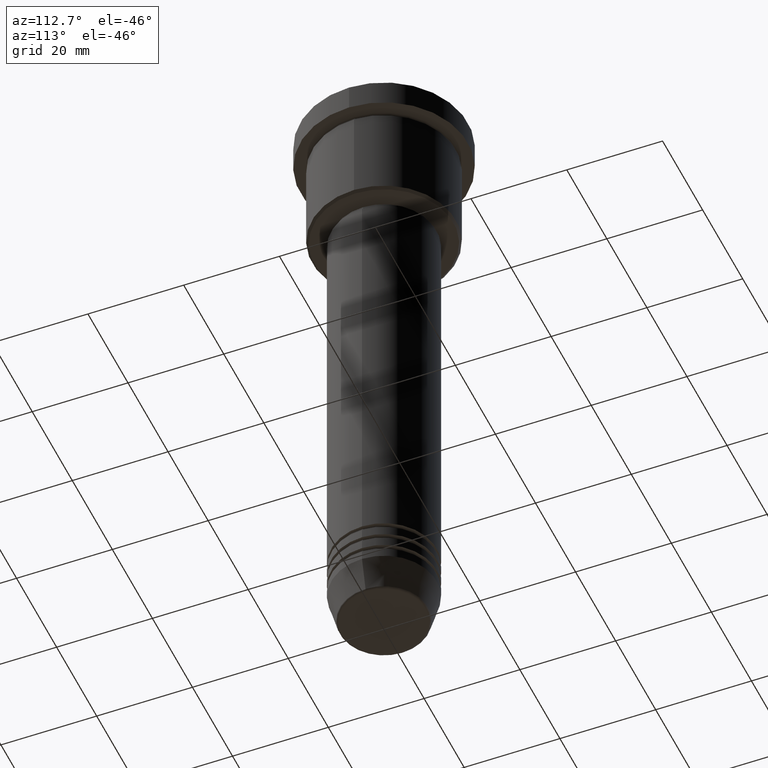
[diagram: clean part render]
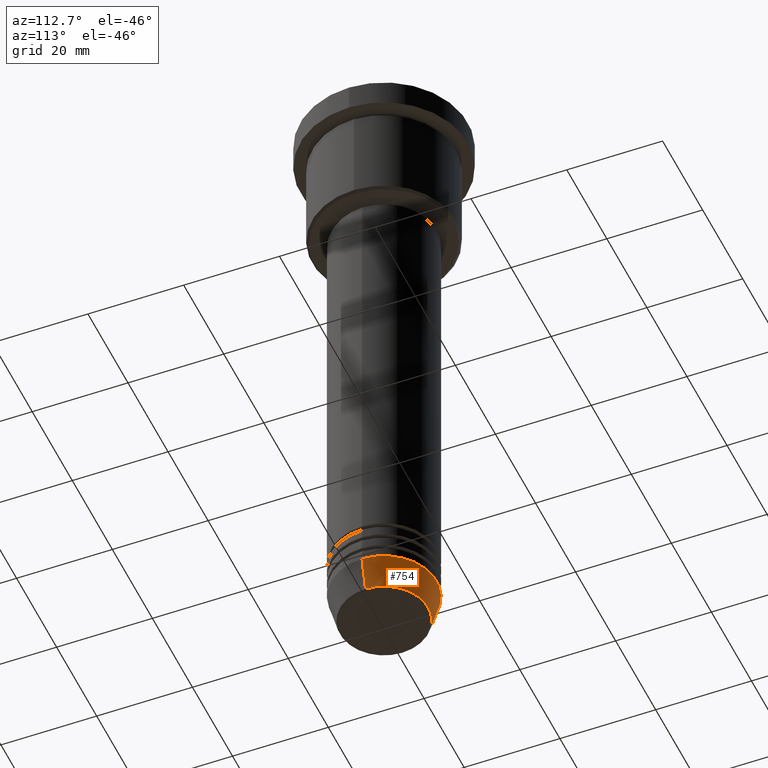
[diagram: same view with one face highlighted and labeled with its STEP entity id]
A machine part, auxiliary view. The second image highlights one B-rep face of the part: STEP entity #754.
In plain terms, the highlighted conical surface has half-angle 15 deg.
Its self-contained STEP definition (entity closure, byte-faithful):
#17 = LINE ( 'NONE', #686, #401 ) ;
#22 = AXIS2_PLACEMENT_3D ( 'NONE', #36, #681, #570 ) ;
#36 = CARTESIAN_POINT ( 'NONE',  ( 0.000000000000000000, 0.000000000000000000, -131.6294095225512422 ) ) ;
#118 = AXIS2_PLACEMENT_3D ( 'NONE', #819, #898, #265 ) ;
#125 = CARTESIAN_POINT ( 'NONE',  ( -11.00000000000000000, 1.347111479062088405E-15, -125.0000000000000000 ) ) ;
#179 = VERTEX_POINT ( 'NONE', #466 ) ;
#202 = ORIENTED_EDGE ( 'NONE', *, *, #415, .T. ) ;
#265 = DIRECTION ( 'NONE',  ( 1.000000000000000000, 0.000000000000000000, 0.000000000000000000 ) ) ;
#303 = CONICAL_SURFACE ( 'NONE', #863, 11.00000000000000000, 0.2617993877991500740 ) ;
#313 = ORIENTED_EDGE ( 'NONE', *, *, #914, .T. ) ;
#373 = CARTESIAN_POINT ( 'NONE',  ( 0.000000000000000000, 0.000000000000000000, -125.0000000000000000 ) ) ;
#399 = CARTESIAN_POINT ( 'NONE',  ( 9.223655072137187716, 0.000000000000000000, -131.6294095225512422 ) ) ;
#401 = VECTOR ( 'NONE', #974, 1000.000000000000000 ) ;
#415 = EDGE_CURVE ( 'NONE', #902, #179, #1048, .T. ) ;
#417 = ORIENTED_EDGE ( 'NONE', *, *, #931, .F. ) ;
#436 = EDGE_LOOP ( 'NONE', ( #202, #313, #679, #417 ) ) ;
#466 = CARTESIAN_POINT ( 'NONE',  ( -9.223655072137187716, 1.238341722557647004E-15, -131.6294095225512422 ) ) ;
#470 = CARTESIAN_POINT ( 'NONE',  ( 11.00000000000000000, 0.000000000000000000, -125.0000000000000000 ) ) ;
#476 = LINE ( 'NONE', #125, #638 ) ;
#487 = DIRECTION ( 'NONE',  ( -0.2588190451025213501, 3.169619151431772337E-17, 0.9659258262890680902 ) ) ;
#555 = FACE_OUTER_BOUND ( 'NONE', #436, .T. ) ;
#570 = DIRECTION ( 'NONE',  ( 1.000000000000000000, 0.000000000000000000, 0.000000000000000000 ) ) ;
#624 = DIRECTION ( 'NONE',  ( 1.000000000000000000, 0.000000000000000000, 0.000000000000000000 ) ) ;
#628 = EDGE_CURVE ( 'NONE', #892, #918, #1052, .T. ) ;
#638 = VECTOR ( 'NONE', #487, 1000.000000000000000 ) ;
#679 = ORIENTED_EDGE ( 'NONE', *, *, #628, .F. ) ;
#681 = DIRECTION ( 'NONE',  ( -0.000000000000000000, -0.000000000000000000, 1.000000000000000000 ) ) ;
#686 = CARTESIAN_POINT ( 'NONE',  ( 11.00000000000000000, 0.000000000000000000, -125.0000000000000000 ) ) ;
#743 = DIRECTION ( 'NONE',  ( -0.000000000000000000, -0.000000000000000000, 1.000000000000000000 ) ) ;
#754 = ADVANCED_FACE ( 'NONE', ( #555 ), #303, .T. ) ;
#819 = CARTESIAN_POINT ( 'NONE',  ( 0.000000000000000000, 0.000000000000000000, -125.0000000000000000 ) ) ;
#863 = AXIS2_PLACEMENT_3D ( 'NONE', #373, #743, #624 ) ;
#892 = VERTEX_POINT ( 'NONE', #470 ) ;
#898 = DIRECTION ( 'NONE',  ( -0.000000000000000000, -0.000000000000000000, 1.000000000000000000 ) ) ;
#902 = VERTEX_POINT ( 'NONE', #399 ) ;
#914 = EDGE_CURVE ( 'NONE', #179, #918, #476, .T. ) ;
#918 = VERTEX_POINT ( 'NONE', #1104 ) ;
#931 = EDGE_CURVE ( 'NONE', #902, #892, #17, .T. ) ;
#974 = DIRECTION ( 'NONE',  ( 0.2588190451025213501, 0.000000000000000000, 0.9659258262890680902 ) ) ;
#1048 = CIRCLE ( 'NONE', #22, 9.223655072137187716 ) ;
#1052 = CIRCLE ( 'NONE', #118, 11.00000000000000000 ) ;
#1104 = CARTESIAN_POINT ( 'NONE',  ( -11.00000000000000000, 1.347111479062088405E-15, -125.0000000000000000 ) ) ;